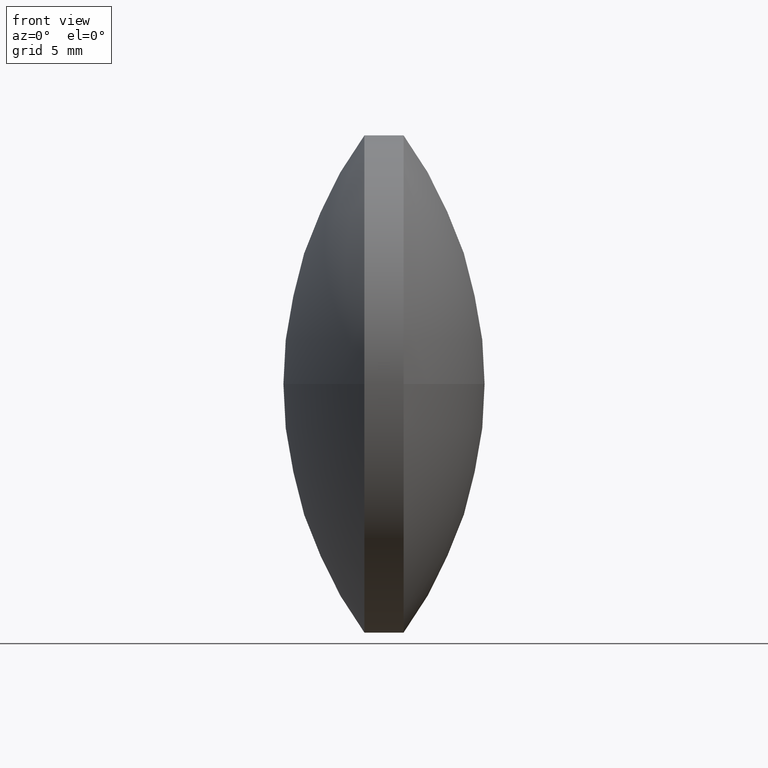
[diagram: clean part render]
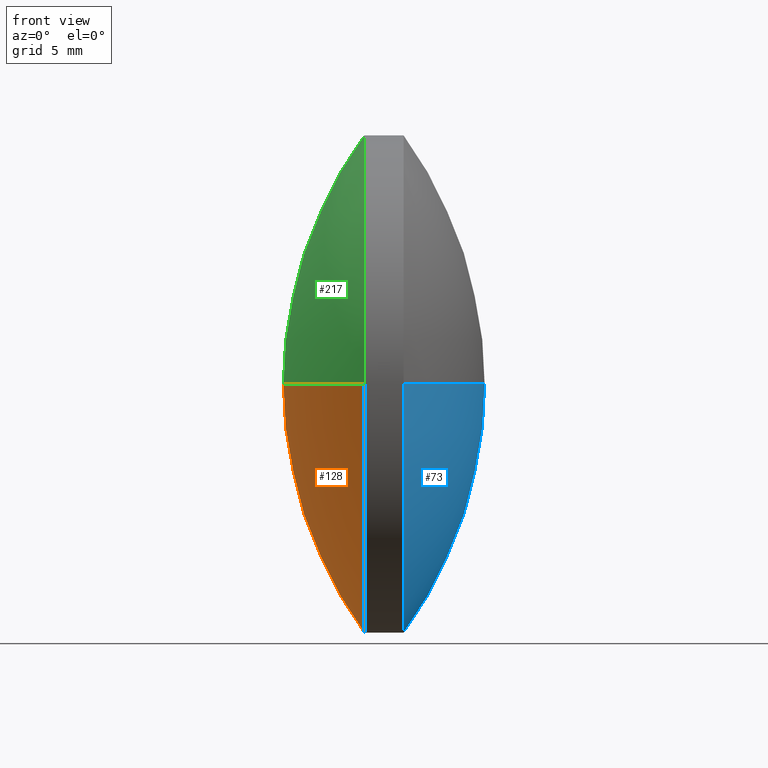
[diagram: same view with three faces highlighted in distinct colors, each labeled with its STEP entity id]
A machine part, front view with three faces highlighted in distinct colors.
Their STEP definitions:

[orange] entity #128 — the highlighted spherical surface has radius 21.5538 mm.
#5 = VERTEX_POINT ( 'NONE', #93 ) ;
#12 = CARTESIAN_POINT ( 'NONE',  ( 102.8733814727447100, 48.61611302318478100, 0.0000000000000000000 ) ) ;
#34 = CIRCLE ( 'NONE', #330, 21.55382375359857100 ) ;
#42 = CARTESIAN_POINT ( 'NONE',  ( 85.45852234609111500, 48.61611302318478100, -12.69999999999999600 ) ) ;
#44 = DIRECTION ( 'NONE',  ( -1.000000000000000000, -0.0000000000000000000, -0.0000000000000000000 ) ) ;
#46 = VERTEX_POINT ( 'NONE', #42 ) ;
#47 = AXIS2_PLACEMENT_3D ( 'NONE', #307, #328, #159 ) ;
#65 = VERTEX_POINT ( 'NONE', #177 ) ;
#68 = CARTESIAN_POINT ( 'NONE',  ( 85.45852234609111500, 61.31611302318477600, 0.0000000000000000000 ) ) ;
#69 = CIRCLE ( 'NONE', #345, 21.55382375359856400 ) ;
#77 = ORIENTED_EDGE ( 'NONE', *, *, #301, .T. ) ;
#82 = DIRECTION ( 'NONE',  ( 0.0000000000000000000, 1.224646799147353200E-016, -1.000000000000000000 ) ) ;
#88 = DIRECTION ( 'NONE',  ( 0.0000000000000000000, 1.000000000000000000, 0.0000000000000000000 ) ) ;
#90 = DIRECTION ( 'NONE',  ( -0.0000000000000000000, 0.0000000000000000000, -1.000000000000000000 ) ) ;
#93 = CARTESIAN_POINT ( 'NONE',  ( 85.45852234609111500, 35.91611302318478500, -1.555301434917138400E-015 ) ) ;
#95 = AXIS2_PLACEMENT_3D ( 'NONE', #98, #44, #168 ) ;
#98 = CARTESIAN_POINT ( 'NONE',  ( 85.45852234609111500, 48.61611302318478100, 0.0000000000000000000 ) ) ;
#118 = AXIS2_PLACEMENT_3D ( 'NONE', #337, #90, #88 ) ;
#128 = ADVANCED_FACE ( 'NONE', ( #163 ), #155, .T. ) ;
#155 = SPHERICAL_SURFACE ( 'NONE', #118, 21.55382375359857100 ) ;
#156 = CARTESIAN_POINT ( 'NONE',  ( 102.8733814727447100, 48.61611302318478100, 0.0000000000000000000 ) ) ;
#159 = DIRECTION ( 'NONE',  ( 0.0000000000000000000, 0.0000000000000000000, 1.000000000000000000 ) ) ;
#163 = FACE_OUTER_BOUND ( 'NONE', #256, .T. ) ;
#168 = DIRECTION ( 'NONE',  ( 0.0000000000000000000, 0.0000000000000000000, 1.000000000000000000 ) ) ;
#177 = CARTESIAN_POINT ( 'NONE',  ( 81.31955771914613300, 48.61611302318478100, 0.0000000000000000000 ) ) ;
#179 = DIRECTION ( 'NONE',  ( -0.0000000000000000000, 0.0000000000000000000, 1.000000000000000000 ) ) ;
#180 = EDGE_CURVE ( 'NONE', #229, #65, #34, .T. ) ;
#199 = DIRECTION ( 'NONE',  ( 0.0000000000000000000, 1.000000000000000000, 1.224646799147353700E-016 ) ) ;
#203 = EDGE_CURVE ( 'NONE', #229, #46, #297, .T. ) ;
#229 = VERTEX_POINT ( 'NONE', #68 ) ;
#235 = EDGE_CURVE ( 'NONE', #5, #65, #69, .T. ) ;
#244 = ORIENTED_EDGE ( 'NONE', *, *, #180, .F. ) ;
#256 = EDGE_LOOP ( 'NONE', ( #77, #329, #244, #270 ) ) ;
#270 = ORIENTED_EDGE ( 'NONE', *, *, #203, .T. ) ;
#277 = CIRCLE ( 'NONE', #47, 12.69999999999999600 ) ;
#297 = CIRCLE ( 'NONE', #95, 12.69999999999999600 ) ;
#301 = EDGE_CURVE ( 'NONE', #46, #5, #277, .T. ) ;
#307 = CARTESIAN_POINT ( 'NONE',  ( 85.45852234609111500, 48.61611302318478100, 0.0000000000000000000 ) ) ;
#328 = DIRECTION ( 'NONE',  ( -1.000000000000000000, -0.0000000000000000000, -0.0000000000000000000 ) ) ;
#329 = ORIENTED_EDGE ( 'NONE', *, *, #235, .T. ) ;
#330 = AXIS2_PLACEMENT_3D ( 'NONE', #156, #179, #342 ) ;
#337 = CARTESIAN_POINT ( 'NONE',  ( 102.8733814727447100, 48.61611302318478100, 0.0000000000000000000 ) ) ;
#342 = DIRECTION ( 'NONE',  ( 1.000000000000000000, 0.0000000000000000000, 0.0000000000000000000 ) ) ;
#345 = AXIS2_PLACEMENT_3D ( 'NONE', #12, #82, #199 ) ;

[blue] entity #73 — the highlighted spherical surface has radius 21.5538 mm.
#15 = VERTEX_POINT ( 'NONE', #124 ) ;
#18 = CIRCLE ( 'NONE', #286, 12.69999999999999600 ) ;
#19 = CIRCLE ( 'NONE', #25, 21.55382375359854300 ) ;
#25 = AXIS2_PLACEMENT_3D ( 'NONE', #40, #294, #236 ) ;
#38 = EDGE_LOOP ( 'NONE', ( #111, #315, #289, #251 ) ) ;
#40 = CARTESIAN_POINT ( 'NONE',  ( 70.04300607658039700, 48.61611302318478100, 0.0000000000000000000 ) ) ;
#51 = DIRECTION ( 'NONE',  ( 0.0000000000000000000, 0.0000000000000000000, 1.000000000000000000 ) ) ;
#53 = EDGE_CURVE ( 'NONE', #15, #138, #19, .T. ) ;
#67 = DIRECTION ( 'NONE',  ( 0.0000000000000000000, 1.000000000000000000, 0.0000000000000000000 ) ) ;
#73 = ADVANCED_FACE ( 'NONE', ( #278 ), #202, .T. ) ;
#86 = EDGE_CURVE ( 'NONE', #15, #89, #97, .T. ) ;
#87 = DIRECTION ( 'NONE',  ( -1.000000000000000000, -0.0000000000000000000, -0.0000000000000000000 ) ) ;
#89 = VERTEX_POINT ( 'NONE', #146 ) ;
#97 = CIRCLE ( 'NONE', #323, 21.55382375359855000 ) ;
#108 = EDGE_CURVE ( 'NONE', #138, #193, #130, .T. ) ;
#111 = ORIENTED_EDGE ( 'NONE', *, *, #53, .F. ) ;
#121 = DIRECTION ( 'NONE',  ( 0.0000000000000000000, 1.000000000000000000, 1.224646799147353200E-016 ) ) ;
#124 = CARTESIAN_POINT ( 'NONE',  ( 91.59682983017894700, 48.61611302318478100, 0.0000000000000000000 ) ) ;
#126 = CARTESIAN_POINT ( 'NONE',  ( 87.45786520323396500, 61.31611302318477600, 0.0000000000000000000 ) ) ;
#129 = AXIS2_PLACEMENT_3D ( 'NONE', #152, #340, #67 ) ;
#130 = CIRCLE ( 'NONE', #224, 12.69999999999999600 ) ;
#138 = VERTEX_POINT ( 'NONE', #126 ) ;
#146 = CARTESIAN_POINT ( 'NONE',  ( 87.45786520323396500, 35.91611302318478500, -1.555301434917138000E-015 ) ) ;
#152 = CARTESIAN_POINT ( 'NONE',  ( 70.04300607658039700, 48.61611302318478100, 0.0000000000000000000 ) ) ;
#193 = VERTEX_POINT ( 'NONE', #242 ) ;
#195 = CARTESIAN_POINT ( 'NONE',  ( 87.45786520323396500, 48.61611302318478100, 0.0000000000000000000 ) ) ;
#202 = SPHERICAL_SURFACE ( 'NONE', #129, 21.55382375359854700 ) ;
#204 = CARTESIAN_POINT ( 'NONE',  ( 87.45786520323396500, 48.61611302318478100, 0.0000000000000000000 ) ) ;
#208 = CARTESIAN_POINT ( 'NONE',  ( 70.04300607658039700, 48.61611302318478100, 0.0000000000000000000 ) ) ;
#223 = DIRECTION ( 'NONE',  ( -1.000000000000000000, -0.0000000000000000000, -0.0000000000000000000 ) ) ;
#224 = AXIS2_PLACEMENT_3D ( 'NONE', #204, #87, #262 ) ;
#236 = DIRECTION ( 'NONE',  ( 1.000000000000000000, 0.0000000000000000000, 0.0000000000000000000 ) ) ;
#242 = CARTESIAN_POINT ( 'NONE',  ( 87.45786520323396500, 48.61611302318478100, -12.69999999999999600 ) ) ;
#251 = ORIENTED_EDGE ( 'NONE', *, *, #108, .F. ) ;
#262 = DIRECTION ( 'NONE',  ( 0.0000000000000000000, 0.0000000000000000000, 1.000000000000000000 ) ) ;
#278 = FACE_OUTER_BOUND ( 'NONE', #38, .T. ) ;
#286 = AXIS2_PLACEMENT_3D ( 'NONE', #195, #223, #51 ) ;
#289 = ORIENTED_EDGE ( 'NONE', *, *, #322, .F. ) ;
#291 = DIRECTION ( 'NONE',  ( 0.0000000000000000000, 1.224646799147353200E-016, -1.000000000000000000 ) ) ;
#294 = DIRECTION ( 'NONE',  ( -0.0000000000000000000, 0.0000000000000000000, 1.000000000000000000 ) ) ;
#315 = ORIENTED_EDGE ( 'NONE', *, *, #86, .T. ) ;
#322 = EDGE_CURVE ( 'NONE', #193, #89, #18, .T. ) ;
#323 = AXIS2_PLACEMENT_3D ( 'NONE', #208, #291, #121 ) ;
#340 = DIRECTION ( 'NONE',  ( -0.0000000000000000000, 0.0000000000000000000, -1.000000000000000000 ) ) ;

[green] entity #217 — the highlighted spherical surface has radius 21.5538 mm.
#5 = VERTEX_POINT ( 'NONE', #93 ) ;
#10 = EDGE_LOOP ( 'NONE', ( #120, #320, #149, #215 ) ) ;
#11 = EDGE_CURVE ( 'NONE', #5, #302, #306, .T. ) ;
#12 = CARTESIAN_POINT ( 'NONE',  ( 102.8733814727447100, 48.61611302318478100, 0.0000000000000000000 ) ) ;
#32 = AXIS2_PLACEMENT_3D ( 'NONE', #284, #332, #169 ) ;
#34 = CIRCLE ( 'NONE', #330, 21.55382375359857100 ) ;
#65 = VERTEX_POINT ( 'NONE', #177 ) ;
#68 = CARTESIAN_POINT ( 'NONE',  ( 85.45852234609111500, 61.31611302318477600, 0.0000000000000000000 ) ) ;
#69 = CIRCLE ( 'NONE', #345, 21.55382375359856400 ) ;
#74 = AXIS2_PLACEMENT_3D ( 'NONE', #92, #207, #174 ) ;
#82 = DIRECTION ( 'NONE',  ( 0.0000000000000000000, 1.224646799147353200E-016, -1.000000000000000000 ) ) ;
#92 = CARTESIAN_POINT ( 'NONE',  ( 85.45852234609111500, 48.61611302318478100, 0.0000000000000000000 ) ) ;
#93 = CARTESIAN_POINT ( 'NONE',  ( 85.45852234609111500, 35.91611302318478500, -1.555301434917138400E-015 ) ) ;
#120 = ORIENTED_EDGE ( 'NONE', *, *, #235, .F. ) ;
#127 = DIRECTION ( 'NONE',  ( -1.000000000000000000, -0.0000000000000000000, -0.0000000000000000000 ) ) ;
#145 = EDGE_CURVE ( 'NONE', #302, #229, #232, .T. ) ;
#149 = ORIENTED_EDGE ( 'NONE', *, *, #145, .T. ) ;
#156 = CARTESIAN_POINT ( 'NONE',  ( 102.8733814727447100, 48.61611302318478100, 0.0000000000000000000 ) ) ;
#169 = DIRECTION ( 'NONE',  ( 0.0000000000000000000, 1.000000000000000000, 0.0000000000000000000 ) ) ;
#172 = SPHERICAL_SURFACE ( 'NONE', #32, 21.55382375359857100 ) ;
#174 = DIRECTION ( 'NONE',  ( 0.0000000000000000000, 0.0000000000000000000, 1.000000000000000000 ) ) ;
#177 = CARTESIAN_POINT ( 'NONE',  ( 81.31955771914613300, 48.61611302318478100, 0.0000000000000000000 ) ) ;
#179 = DIRECTION ( 'NONE',  ( -0.0000000000000000000, 0.0000000000000000000, 1.000000000000000000 ) ) ;
#180 = EDGE_CURVE ( 'NONE', #229, #65, #34, .T. ) ;
#199 = DIRECTION ( 'NONE',  ( 0.0000000000000000000, 1.000000000000000000, 1.224646799147353700E-016 ) ) ;
#207 = DIRECTION ( 'NONE',  ( -1.000000000000000000, -0.0000000000000000000, -0.0000000000000000000 ) ) ;
#209 = DIRECTION ( 'NONE',  ( 0.0000000000000000000, 0.0000000000000000000, 1.000000000000000000 ) ) ;
#215 = ORIENTED_EDGE ( 'NONE', *, *, #180, .T. ) ;
#217 = ADVANCED_FACE ( 'NONE', ( #288 ), #172, .T. ) ;
#229 = VERTEX_POINT ( 'NONE', #68 ) ;
#232 = CIRCLE ( 'NONE', #280, 12.69999999999999600 ) ;
#235 = EDGE_CURVE ( 'NONE', #5, #65, #69, .T. ) ;
#280 = AXIS2_PLACEMENT_3D ( 'NONE', #292, #127, #209 ) ;
#284 = CARTESIAN_POINT ( 'NONE',  ( 102.8733814727447100, 48.61611302318478100, 0.0000000000000000000 ) ) ;
#288 = FACE_OUTER_BOUND ( 'NONE', #10, .T. ) ;
#292 = CARTESIAN_POINT ( 'NONE',  ( 85.45852234609111500, 48.61611302318478100, 0.0000000000000000000 ) ) ;
#302 = VERTEX_POINT ( 'NONE', #324 ) ;
#306 = CIRCLE ( 'NONE', #74, 12.69999999999999600 ) ;
#320 = ORIENTED_EDGE ( 'NONE', *, *, #11, .T. ) ;
#324 = CARTESIAN_POINT ( 'NONE',  ( 85.45852234609111500, 48.61611302318478100, 12.69999999999999600 ) ) ;
#330 = AXIS2_PLACEMENT_3D ( 'NONE', #156, #179, #342 ) ;
#332 = DIRECTION ( 'NONE',  ( -0.0000000000000000000, 0.0000000000000000000, -1.000000000000000000 ) ) ;
#342 = DIRECTION ( 'NONE',  ( 1.000000000000000000, 0.0000000000000000000, 0.0000000000000000000 ) ) ;
#345 = AXIS2_PLACEMENT_3D ( 'NONE', #12, #82, #199 ) ;